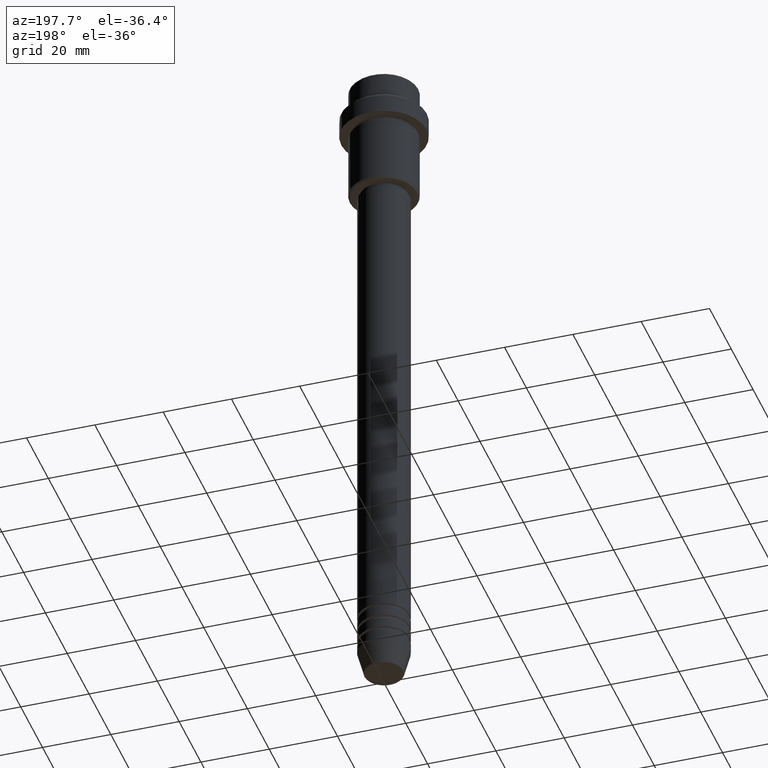
[diagram: clean part render]
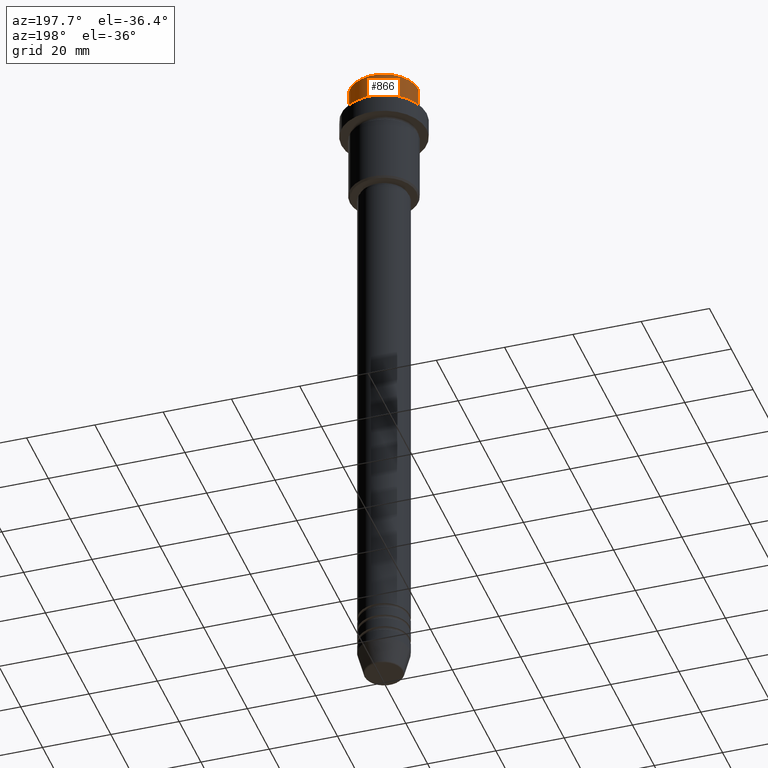
[diagram: same view with one face highlighted and labeled with its STEP entity id]
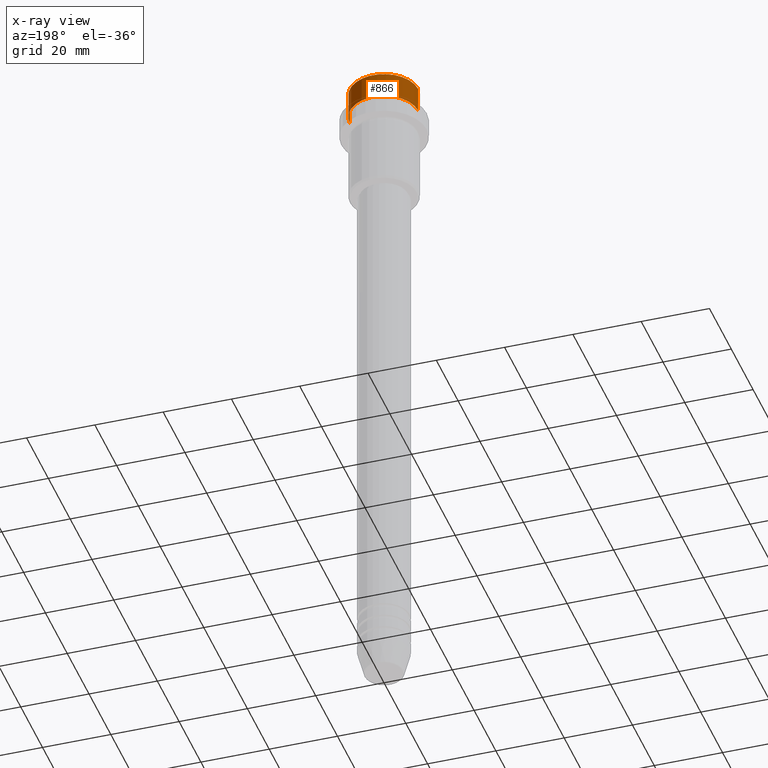
[diagram: x-ray of the same camera — body ghosted, the highlighted face saturated]
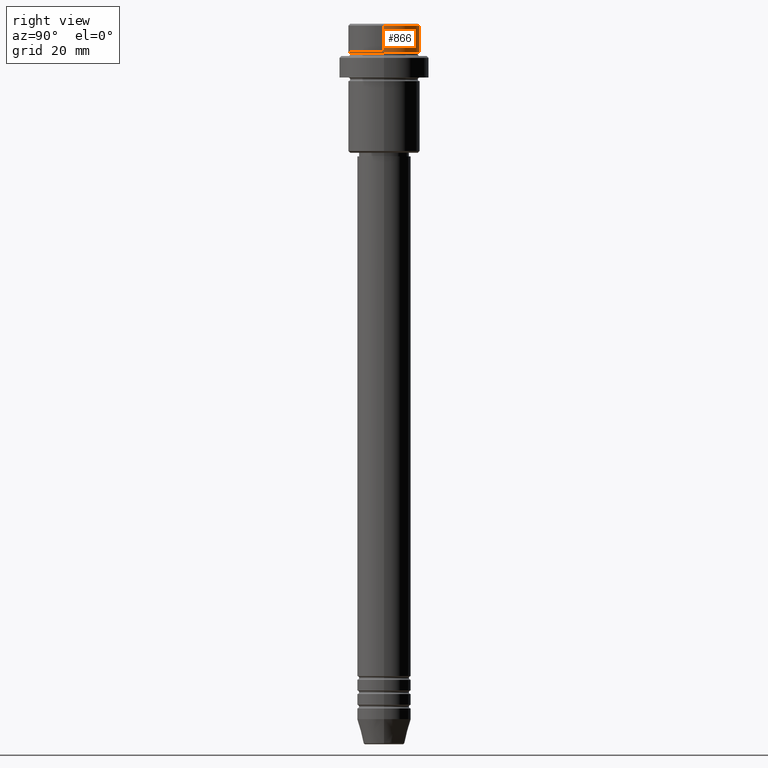
[diagram: same view with one face highlighted and labeled with its STEP entity id]
A machine part, auxiliary view. The second image highlights one B-rep face of the part: STEP entity #866.
The next image is the same camera in x-ray: the body ghosted, the highlighted face saturated — about 0% of this face is hidden behind the body in this view.
A second angle (right view) of the same face is appended — the face is thin or edge-on in the first view.
In plain terms, the highlighted cylindrical surface (edge-blend (fillet) strip) has radius 10 mm, axis along (-0, -0, 1).
Its self-contained STEP definition (entity closure, byte-faithful):
#24 = VERTEX_POINT ( 'NONE', #800 ) ;
#36 = AXIS2_PLACEMENT_3D ( 'NONE', #460, #1241, #898 ) ;
#41 = EDGE_CURVE ( 'NONE', #1368, #473, #1274, .T. ) ;
#48 = DIRECTION ( 'NONE',  ( 1.000000000000000000, 0.000000000000000000, 0.000000000000000000 ) ) ;
#80 = CIRCLE ( 'NONE', #105, 9.999999999999998224 ) ;
#105 = AXIS2_PLACEMENT_3D ( 'NONE', #564, #795, #338 ) ;
#142 = ORIENTED_EDGE ( 'NONE', *, *, #41, .T. ) ;
#191 = AXIS2_PLACEMENT_3D ( 'NONE', #738, #409, #48 ) ;
#205 = EDGE_CURVE ( 'NONE', #1368, #506, #645, .T. ) ;
#236 = FACE_OUTER_BOUND ( 'NONE', #427, .T. ) ;
#237 = LINE ( 'NONE', #1338, #1140 ) ;
#338 = DIRECTION ( 'NONE',  ( 1.000000000000000000, 0.000000000000000000, 0.000000000000000000 ) ) ;
#367 = ORIENTED_EDGE ( 'NONE', *, *, #1287, .T. ) ;
#390 = EDGE_CURVE ( 'NONE', #473, #24, #237, .T. ) ;
#409 = DIRECTION ( 'NONE',  ( -0.000000000000000000, -0.000000000000000000, 1.000000000000000000 ) ) ;
#427 = EDGE_LOOP ( 'NONE', ( #142, #665, #367, #1315 ) ) ;
#460 = CARTESIAN_POINT ( 'NONE',  ( 0.000000000000000000, 0.000000000000000000, 0.000000000000000000 ) ) ;
#473 = VERTEX_POINT ( 'NONE', #1106 ) ;
#506 = VERTEX_POINT ( 'NONE', #1262 ) ;
#524 = DIRECTION ( 'NONE',  ( -0.000000000000000000, -0.000000000000000000, 1.000000000000000000 ) ) ;
#540 = CARTESIAN_POINT ( 'NONE',  ( 9.999999999999998224, 0.000000000000000000, 0.000000000000000000 ) ) ;
#550 = DIRECTION ( 'NONE',  ( -0.000000000000000000, -0.000000000000000000, 1.000000000000000000 ) ) ;
#564 = CARTESIAN_POINT ( 'NONE',  ( 0.000000000000000000, 0.000000000000000000, -0.4999999999999691358 ) ) ;
#645 = LINE ( 'NONE', #540, #1207 ) ;
#665 = ORIENTED_EDGE ( 'NONE', *, *, #390, .T. ) ;
#738 = CARTESIAN_POINT ( 'NONE',  ( 0.000000000000000000, 0.000000000000000000, -7.999999999999998224 ) ) ;
#795 = DIRECTION ( 'NONE',  ( 0.000000000000000000, 0.000000000000000000, -1.000000000000000000 ) ) ;
#800 = CARTESIAN_POINT ( 'NONE',  ( -9.999999999999998224, 1.224646799147353059E-15, -0.4999999999999691358 ) ) ;
#817 = CARTESIAN_POINT ( 'NONE',  ( 9.999999999999998224, 0.000000000000000000, -7.999999999999998224 ) ) ;
#866 = ADVANCED_FACE ( 'NONE', ( #236 ), #1122, .T. ) ;
#898 = DIRECTION ( 'NONE',  ( 1.000000000000000000, 0.000000000000000000, 0.000000000000000000 ) ) ;
#1106 = CARTESIAN_POINT ( 'NONE',  ( -9.999999999999998224, 1.224646799147353059E-15, -7.999999999999998224 ) ) ;
#1122 = CYLINDRICAL_SURFACE ( 'NONE', #36, 9.999999999999998224 ) ;
#1140 = VECTOR ( 'NONE', #550, 1000.000000000000000 ) ;
#1207 = VECTOR ( 'NONE', #524, 1000.000000000000000 ) ;
#1241 = DIRECTION ( 'NONE',  ( -0.000000000000000000, -0.000000000000000000, 1.000000000000000000 ) ) ;
#1262 = CARTESIAN_POINT ( 'NONE',  ( 9.999999999999998224, 0.000000000000000000, -0.4999999999999691358 ) ) ;
#1274 = CIRCLE ( 'NONE', #191, 9.999999999999998224 ) ;
#1287 = EDGE_CURVE ( 'NONE', #24, #506, #80, .T. ) ;
#1315 = ORIENTED_EDGE ( 'NONE', *, *, #205, .F. ) ;
#1338 = CARTESIAN_POINT ( 'NONE',  ( -9.999999999999998224, 1.224646799147353059E-15, 0.000000000000000000 ) ) ;
#1368 = VERTEX_POINT ( 'NONE', #817 ) ;